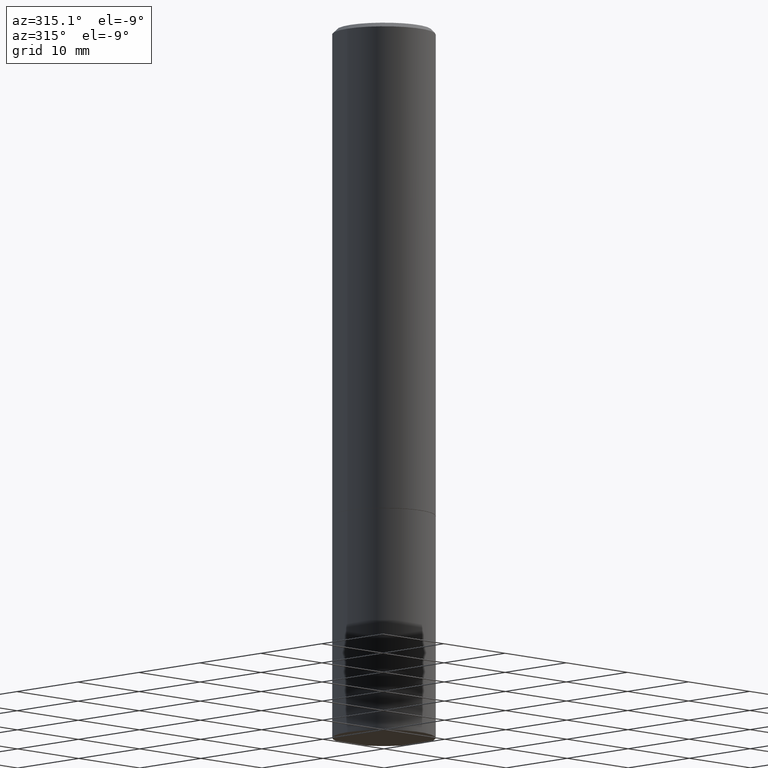
[diagram: clean part render]
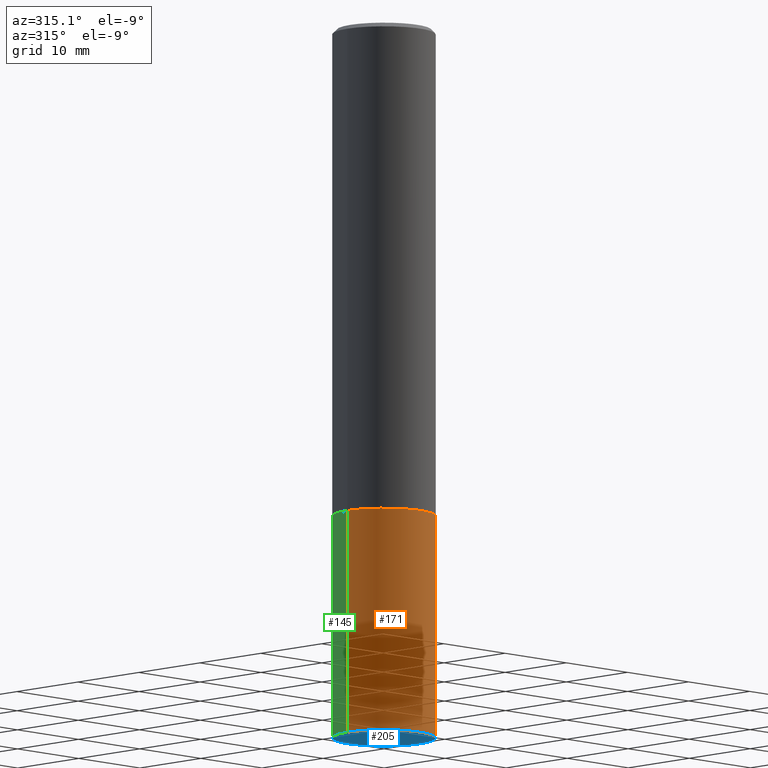
[diagram: same view with three faces highlighted in distinct colors, each labeled with its STEP entity id]
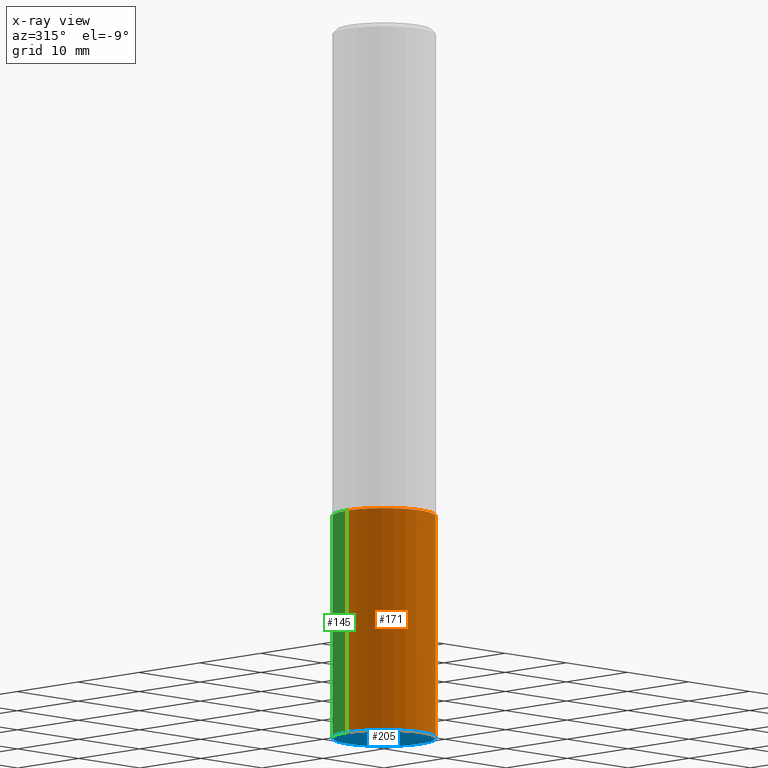
[diagram: x-ray of the same camera — body ghosted, the three highlighted faces saturated]
A machine part, auxiliary view with three faces highlighted in distinct colors.
The next image is the same camera in x-ray (body ghosted, the three faces saturated) — at least one of them is partly hidden behind the body in this view.
Their STEP definitions:

[orange] entity #171 — the highlighted cylindrical surface (partial cylindrical patch) has radius 5.9995 mm, axis along (-0, 0, 1).
#9 = EDGE_LOOP ( 'NONE', ( #12, #90, #69, #86 ) ) ;
#12 = ORIENTED_EDGE ( 'NONE', *, *, #135, .F. ) ;
#17 = AXIS2_PLACEMENT_3D ( 'NONE', #366, #24, #44 ) ;
#18 = VERTEX_POINT ( 'NONE', #98 ) ;
#22 = DIRECTION ( 'NONE',  ( -2.445468806185136877E-29, 3.491481338843145188E-15, 1.000000000000000000 ) ) ;
#23 = FACE_OUTER_BOUND ( 'NONE', #9, .T. ) ;
#24 = DIRECTION ( 'NONE',  ( -2.445468806185136597E-29, 3.491481338843145583E-15, 1.000000000000000000 ) ) ;
#41 = CIRCLE ( 'NONE', #93, 0.2361999999999999933 ) ;
#44 = DIRECTION ( 'NONE',  ( 1.000000000000000000, -6.982962677686266711E-15, 4.876176775795936353E-29 ) ) ;
#57 = EDGE_CURVE ( 'NONE', #294, #296, #130, .T. ) ;
#69 = ORIENTED_EDGE ( 'NONE', *, *, #364, .T. ) ;
#86 = ORIENTED_EDGE ( 'NONE', *, *, #92, .F. ) ;
#90 = ORIENTED_EDGE ( 'NONE', *, *, #57, .T. ) ;
#92 = EDGE_CURVE ( 'NONE', #150, #18, #41, .T. ) ;
#93 = AXIS2_PLACEMENT_3D ( 'NONE', #239, #363, #308 ) ;
#98 = CARTESIAN_POINT ( 'NONE',  ( 0.2361999999999999933, -9.484609056967400443E-15, -2.244100000000000428 ) ) ;
#128 = DIRECTION ( 'NONE',  ( -2.445468806185136597E-29, 3.491481338843145583E-15, 1.000000000000000000 ) ) ;
#130 = CIRCLE ( 'NONE', #225, 0.2361999999999999933 ) ;
#131 = VECTOR ( 'NONE', #22, 39.37007874015748143 ) ;
#134 = CARTESIAN_POINT ( 'NONE',  ( -0.2361999999999999933, 1.678301941865356591E-15, -1.161852468318208757E-29 ) ) ;
#135 = EDGE_CURVE ( 'NONE', #294, #150, #184, .T. ) ;
#137 = CYLINDRICAL_SURFACE ( 'NONE', #17, 0.2361999999999999933 ) ;
#150 = VERTEX_POINT ( 'NONE', #302 ) ;
#171 = ADVANCED_FACE ( 'NONE', ( #23 ), #137, .T. ) ;
#184 = LINE ( 'NONE', #134, #355 ) ;
#185 = LINE ( 'NONE', #190, #131 ) ;
#190 = CARTESIAN_POINT ( 'NONE',  ( 0.2361999999999999933, -1.649375784469496131E-15, 1.151752954443000088E-29 ) ) ;
#225 = AXIS2_PLACEMENT_3D ( 'NONE', #279, #128, #247 ) ;
#239 = CARTESIAN_POINT ( 'NONE',  ( 5.487876547960065873E-29, -7.835233272497903917E-15, -2.244100000000000428 ) ) ;
#247 = DIRECTION ( 'NONE',  ( 1.000000000000000000, -6.982962677686265133E-15, 0.000000000000000000 ) ) ;
#251 = CARTESIAN_POINT ( 'NONE',  ( 0.2361999999999999933, -1.305848935540724297E-14, -3.267700000000000049 ) ) ;
#279 = CARTESIAN_POINT ( 'NONE',  ( 7.991058417971171713E-29, -1.140911357093774644E-14, -3.267700000000000049 ) ) ;
#294 = VERTEX_POINT ( 'NONE', #349 ) ;
#296 = VERTEX_POINT ( 'NONE', #251 ) ;
#300 = DIRECTION ( 'NONE',  ( -2.445468806185136877E-29, 3.491481338843145188E-15, 1.000000000000000000 ) ) ;
#302 = CARTESIAN_POINT ( 'NONE',  ( -0.2361999999999999933, -7.943871479852467996E-15, -2.244100000000000428 ) ) ;
#308 = DIRECTION ( 'NONE',  ( 1.000000000000000000, -6.982962677686269077E-15, 0.000000000000000000 ) ) ;
#349 = CARTESIAN_POINT ( 'NONE',  ( -0.2361999999999999933, -7.943871479852467996E-15, -3.267700000000000049 ) ) ;
#355 = VECTOR ( 'NONE', #300, 39.37007874015748143 ) ;
#363 = DIRECTION ( 'NONE',  ( -2.445468806185136597E-29, 3.491481338843145583E-15, 1.000000000000000000 ) ) ;
#364 = EDGE_CURVE ( 'NONE', #296, #18, #185, .T. ) ;
#366 = CARTESIAN_POINT ( 'NONE',  ( 0.000000000000000000, 0.000000000000000000, 0.000000000000000000 ) ) ;

[blue] entity #205 — the highlighted planar face has unit normal (0, -0, -1).
#37 = ORIENTED_EDGE ( 'NONE', *, *, #49, .F. ) ;
#49 = EDGE_CURVE ( 'NONE', #296, #294, #242, .T. ) ;
#57 = EDGE_CURVE ( 'NONE', #294, #296, #130, .T. ) ;
#91 = DIRECTION ( 'NONE',  ( -1.000000000000000000, 6.982962677686265922E-15, -4.876176775795935793E-29 ) ) ;
#96 = ORIENTED_EDGE ( 'NONE', *, *, #57, .F. ) ;
#115 = FACE_OUTER_BOUND ( 'NONE', #293, .T. ) ;
#128 = DIRECTION ( 'NONE',  ( -2.445468806185136597E-29, 3.491481338843145583E-15, 1.000000000000000000 ) ) ;
#130 = CIRCLE ( 'NONE', #225, 0.2361999999999999933 ) ;
#153 = CARTESIAN_POINT ( 'NONE',  ( 7.991058417971171713E-29, -1.140911357093774644E-14, -3.267700000000000049 ) ) ;
#195 = AXIS2_PLACEMENT_3D ( 'NONE', #153, #334, #337 ) ;
#197 = CARTESIAN_POINT ( 'NONE',  ( 1.649375784469575806E-15, 0.2361999999999885858, -3.267700000000001381 ) ) ;
#205 = ADVANCED_FACE ( 'NONE', ( #115 ), #223, .T. ) ;
#223 = PLANE ( 'NONE',  #264 ) ;
#225 = AXIS2_PLACEMENT_3D ( 'NONE', #279, #128, #247 ) ;
#242 = CIRCLE ( 'NONE', #195, 0.2361999999999999933 ) ;
#247 = DIRECTION ( 'NONE',  ( 1.000000000000000000, -6.982962677686265133E-15, 0.000000000000000000 ) ) ;
#251 = CARTESIAN_POINT ( 'NONE',  ( 0.2361999999999999933, -1.305848935540724297E-14, -3.267700000000000049 ) ) ;
#264 = AXIS2_PLACEMENT_3D ( 'NONE', #197, #343, #91 ) ;
#279 = CARTESIAN_POINT ( 'NONE',  ( 7.991058417971171713E-29, -1.140911357093774644E-14, -3.267700000000000049 ) ) ;
#293 = EDGE_LOOP ( 'NONE', ( #37, #96 ) ) ;
#294 = VERTEX_POINT ( 'NONE', #349 ) ;
#296 = VERTEX_POINT ( 'NONE', #251 ) ;
#334 = DIRECTION ( 'NONE',  ( -2.445468806185136597E-29, 3.491481338843145583E-15, 1.000000000000000000 ) ) ;
#337 = DIRECTION ( 'NONE',  ( 1.000000000000000000, -6.982962677686265133E-15, 0.000000000000000000 ) ) ;
#343 = DIRECTION ( 'NONE',  ( 2.438088387897960049E-29, -3.491481338843145188E-15, -1.000000000000000000 ) ) ;
#349 = CARTESIAN_POINT ( 'NONE',  ( -0.2361999999999999933, -7.943871479852467996E-15, -3.267700000000000049 ) ) ;

[green] entity #145 — the highlighted cylindrical surface (partial cylindrical patch) has radius 5.9995 mm, axis along (-0, 0, 1).
#2 = ORIENTED_EDGE ( 'NONE', *, *, #78, .F. ) ;
#13 = ORIENTED_EDGE ( 'NONE', *, *, #49, .T. ) ;
#18 = VERTEX_POINT ( 'NONE', #98 ) ;
#22 = DIRECTION ( 'NONE',  ( -2.445468806185136877E-29, 3.491481338843145188E-15, 1.000000000000000000 ) ) ;
#26 = CARTESIAN_POINT ( 'NONE',  ( 5.487876547960065873E-29, -7.835233272497903917E-15, -2.244100000000000428 ) ) ;
#27 = DIRECTION ( 'NONE',  ( 1.000000000000000000, -6.982962677686266711E-15, 4.876176775795936353E-29 ) ) ;
#49 = EDGE_CURVE ( 'NONE', #296, #294, #242, .T. ) ;
#78 = EDGE_CURVE ( 'NONE', #18, #150, #88, .T. ) ;
#88 = CIRCLE ( 'NONE', #338, 0.2361999999999999933 ) ;
#98 = CARTESIAN_POINT ( 'NONE',  ( 0.2361999999999999933, -9.484609056967400443E-15, -2.244100000000000428 ) ) ;
#131 = VECTOR ( 'NONE', #22, 39.37007874015748143 ) ;
#134 = CARTESIAN_POINT ( 'NONE',  ( -0.2361999999999999933, 1.678301941865356591E-15, -1.161852468318208757E-29 ) ) ;
#135 = EDGE_CURVE ( 'NONE', #294, #150, #184, .T. ) ;
#145 = ADVANCED_FACE ( 'NONE', ( #216 ), #211, .T. ) ;
#150 = VERTEX_POINT ( 'NONE', #302 ) ;
#153 = CARTESIAN_POINT ( 'NONE',  ( 7.991058417971171713E-29, -1.140911357093774644E-14, -3.267700000000000049 ) ) ;
#157 = CARTESIAN_POINT ( 'NONE',  ( 0.000000000000000000, 0.000000000000000000, 0.000000000000000000 ) ) ;
#160 = DIRECTION ( 'NONE',  ( -2.445468806185136597E-29, 3.491481338843145583E-15, 1.000000000000000000 ) ) ;
#167 = ORIENTED_EDGE ( 'NONE', *, *, #364, .F. ) ;
#184 = LINE ( 'NONE', #134, #355 ) ;
#185 = LINE ( 'NONE', #190, #131 ) ;
#190 = CARTESIAN_POINT ( 'NONE',  ( 0.2361999999999999933, -1.649375784469496131E-15, 1.151752954443000088E-29 ) ) ;
#195 = AXIS2_PLACEMENT_3D ( 'NONE', #153, #334, #337 ) ;
#211 = CYLINDRICAL_SURFACE ( 'NONE', #298, 0.2361999999999999933 ) ;
#216 = FACE_OUTER_BOUND ( 'NONE', #353, .T. ) ;
#242 = CIRCLE ( 'NONE', #195, 0.2361999999999999933 ) ;
#251 = CARTESIAN_POINT ( 'NONE',  ( 0.2361999999999999933, -1.305848935540724297E-14, -3.267700000000000049 ) ) ;
#294 = VERTEX_POINT ( 'NONE', #349 ) ;
#296 = VERTEX_POINT ( 'NONE', #251 ) ;
#298 = AXIS2_PLACEMENT_3D ( 'NONE', #157, #160, #27 ) ;
#300 = DIRECTION ( 'NONE',  ( -2.445468806185136877E-29, 3.491481338843145188E-15, 1.000000000000000000 ) ) ;
#302 = CARTESIAN_POINT ( 'NONE',  ( -0.2361999999999999933, -7.943871479852467996E-15, -2.244100000000000428 ) ) ;
#304 = DIRECTION ( 'NONE',  ( -2.445468806185136597E-29, 3.491481338843145583E-15, 1.000000000000000000 ) ) ;
#332 = DIRECTION ( 'NONE',  ( 1.000000000000000000, -6.982962677686269077E-15, 0.000000000000000000 ) ) ;
#334 = DIRECTION ( 'NONE',  ( -2.445468806185136597E-29, 3.491481338843145583E-15, 1.000000000000000000 ) ) ;
#337 = DIRECTION ( 'NONE',  ( 1.000000000000000000, -6.982962677686265133E-15, 0.000000000000000000 ) ) ;
#338 = AXIS2_PLACEMENT_3D ( 'NONE', #26, #304, #332 ) ;
#348 = ORIENTED_EDGE ( 'NONE', *, *, #135, .T. ) ;
#349 = CARTESIAN_POINT ( 'NONE',  ( -0.2361999999999999933, -7.943871479852467996E-15, -3.267700000000000049 ) ) ;
#353 = EDGE_LOOP ( 'NONE', ( #13, #348, #2, #167 ) ) ;
#355 = VECTOR ( 'NONE', #300, 39.37007874015748143 ) ;
#364 = EDGE_CURVE ( 'NONE', #296, #18, #185, .T. ) ;